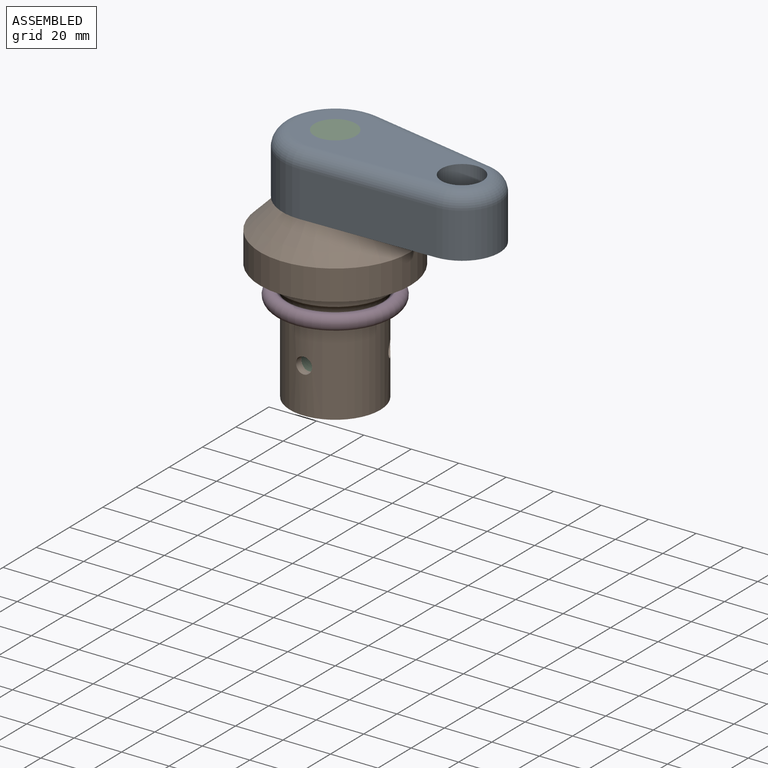
[diagram: assembled view]
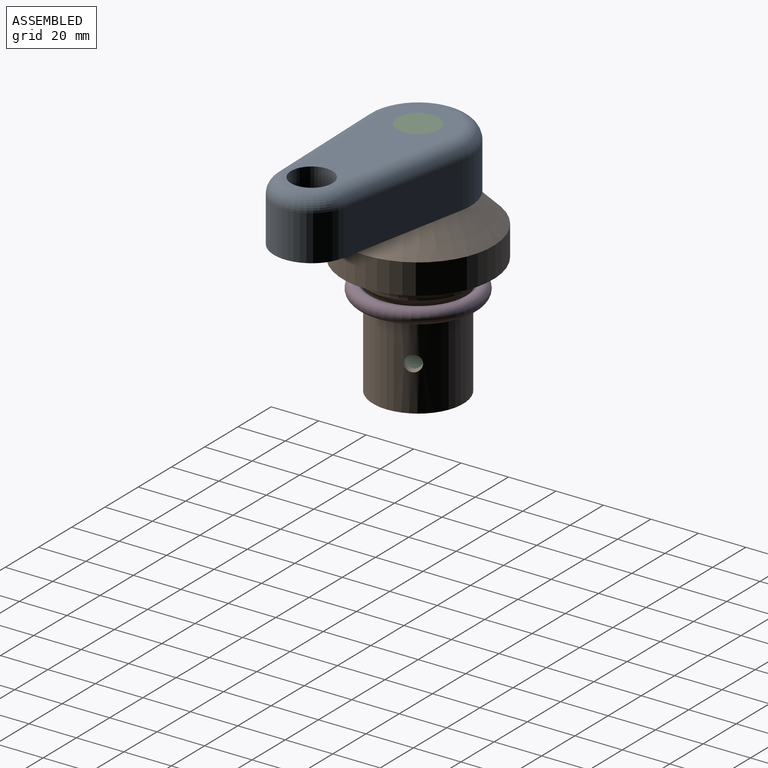
[diagram: assembled view, second angle]
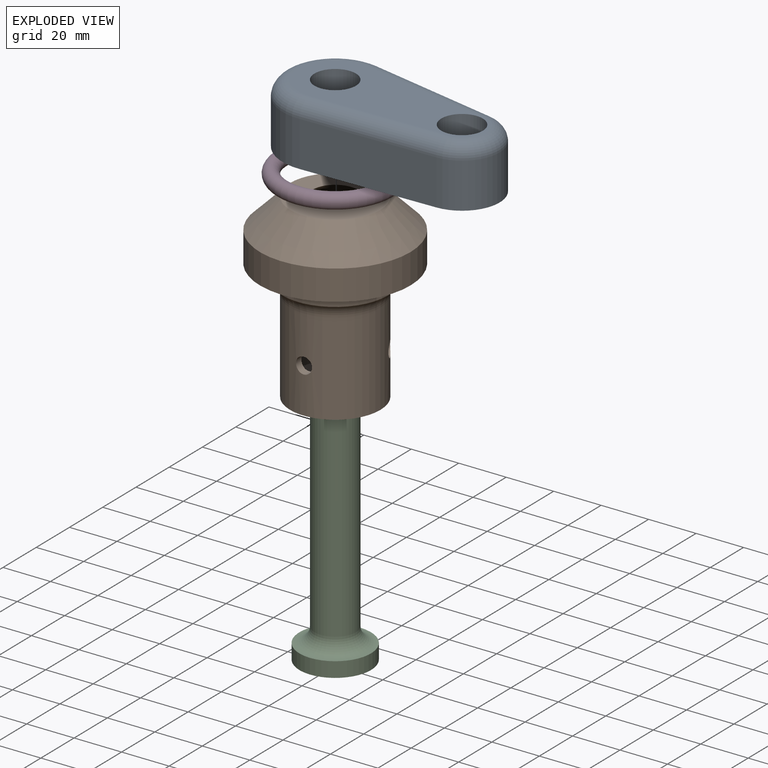
[diagram: exploded view]
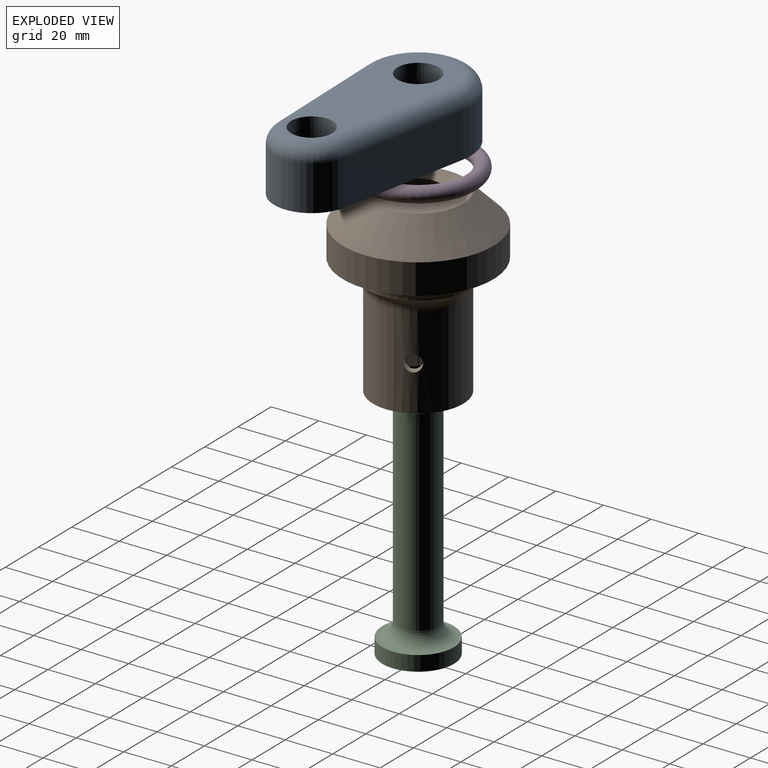
[diagram: exploded view, second angle]
ASSEMBLY  parts=4 mates=3
PART A: 12 faces, bbox 98.4x48.1x25.4 mm
  f0: cylinder r=22.23mm len=44.45mm, axis (0,0,1), area 1424.4mm2, adj f1,f3,f6,f10
  f1: plane 56.44x19.05mm, normal (0.11,-0.99,0), area 1082mm2, adj f0,f2,f6,f11
  f2: cylinder r=15.88mm len=31.55mm, axis (0,0,1), area 882.7mm2, adj f1,f3,f6,f9
  f3: plane 56.44x19.05mm, normal (0.11,0.99,0), area 1082mm2, adj f0,f2,f6,f8
  f4: cylinder r=8.73mm len=25.4mm, axis (0,0,1), area 1393.4mm2, adj f6,f7
  f5: cylinder r=8.73mm len=25.4mm, axis (0,0,1), area 1393.4mm2, adj f6,f7
  f6: plane 95.25x44.45mm, normal (0,0,-1), area 2883.6mm2, adj f0,f1,f2,f3,f4,f5
  f7: plane 82.55x31.75mm, normal (0,0,1), area 1520mm2, adj f4,f5,f8,f9,f10,f11
  f8: cylinder r=6.35mm len=57.15mm, axis (-0.99,0.11,0), area 566.5mm2, adj f3,f7,f9,f10
  f9: torus R=9.53mm, axis (0,0,1), area 395mm2, adj f2,f7,f8,f11
  f10: torus R=15.88mm, axis (0,0,1), area 668.4mm2, adj f0,f7,f8,f11
  f11: cylinder r=6.35mm len=57.15mm, axis (0.99,0.11,0), area 566.5mm2, adj f1,f7,f9,f10
PART B: 15 faces, bbox 71.6x71.6x76.2 mm
  f0: cylinder r=15.88mm len=63.5mm, axis (0,0,1), area 6225.3mm2, adj f2,f8,f9,f10,f11
  f1: cylinder r=19.05mm len=38.95mm, axis (0,0,1), area 4553.8mm2, adj f3,f9,f10,f11,f13
  f2: plane 31.75x31.75mm, normal (0,0,1), area 665.1mm2, adj f0,f14
  f3: plane 38.1x38.1mm, normal (0,0,-1), area 1013.4mm2, adj f1,f14
  f4: plane 63.5x63.5mm, normal (0,0,-1), area 601.7mm2, adj f5,f12
  f5: cylinder r=31.75mm len=63.5mm, axis (0,0,1), area 2533.5mm2, adj f4,f6
  f6: cone r=19.05mm half-angle=45deg, axis (0,0,-1), area 2866.4mm2, adj f5,f7
  f7: plane 38.1x38.1mm, normal (0,0,1), area 855.1mm2, adj f6,f8
  f8: cone r=9.53mm half-angle=45deg, axis (0,0,-1), area 716.6mm2, adj f0,f7
  f9: cylinder r=3.38mm len=6.76mm, axis (0,1,0), area 68mm2, adj f0,f1
  f10: cylinder r=3.38mm len=7.62mm, axis (-0.87,-0.5,0), area 68mm2, adj f0,f1
  f11: cylinder r=3.38mm len=7.62mm, axis (0.87,-0.5,0), area 68mm2, adj f0,f1
  f12: torus R=28.57mm, axis (0,0,-1), area 1537.5mm2, adj f4,f13
  f13: torus R=25.4mm, axis (0,0,1), area 841.8mm2, adj f1,f12
  f14: cylinder r=6.35mm len=12.7mm, axis (0,0,-1), area 253.4mm2, adj f2,f3
PART C: 5 faces, bbox 32.6x32.6x95.3 mm
  f0: plane 30.16x30.16mm, normal (0,0,-1), area 714.5mm2, adj f1
  f1: cylinder r=15.08mm len=30.16mm, axis (0,0,-1), area 601.7mm2, adj f0,f4
  f2: cylinder r=8.73mm len=82.55mm, axis (0,0,-1), area 4528.7mm2, adj f3,f4
  f3: plane 17.46x17.46mm, normal (0,0,1), area 239.5mm2, adj f2
  f4: torus R=15.08mm, axis (0,0,-1), area 691.8mm2, adj f1,f2
PART D: 1 faces, bbox 55x55x6.4 mm
  f0: torus R=22.23mm, axis (0,0,1), area 2785.8mm2
PLACE A rot(axis=(0,0,-1),5deg) t=(0,0,0)mm
PLACE B at identity fixed
PLACE C rot(axis=(0,0,-1),5deg) t=(0,0,0)mm
PLACE D t=(0,0,38.95)mm
MATE fastened A.f0 <-> C.f1  axis (0,0,1) through (0,0,101.6)mm
MATE cylindrical C.f1 <-> B.f0  axis (0,0,-1) through (0,0,6.35)mm
MATE fastened D.f0 <-> B.f0  axis (0,0,1) through (0,0,38.95)mm
